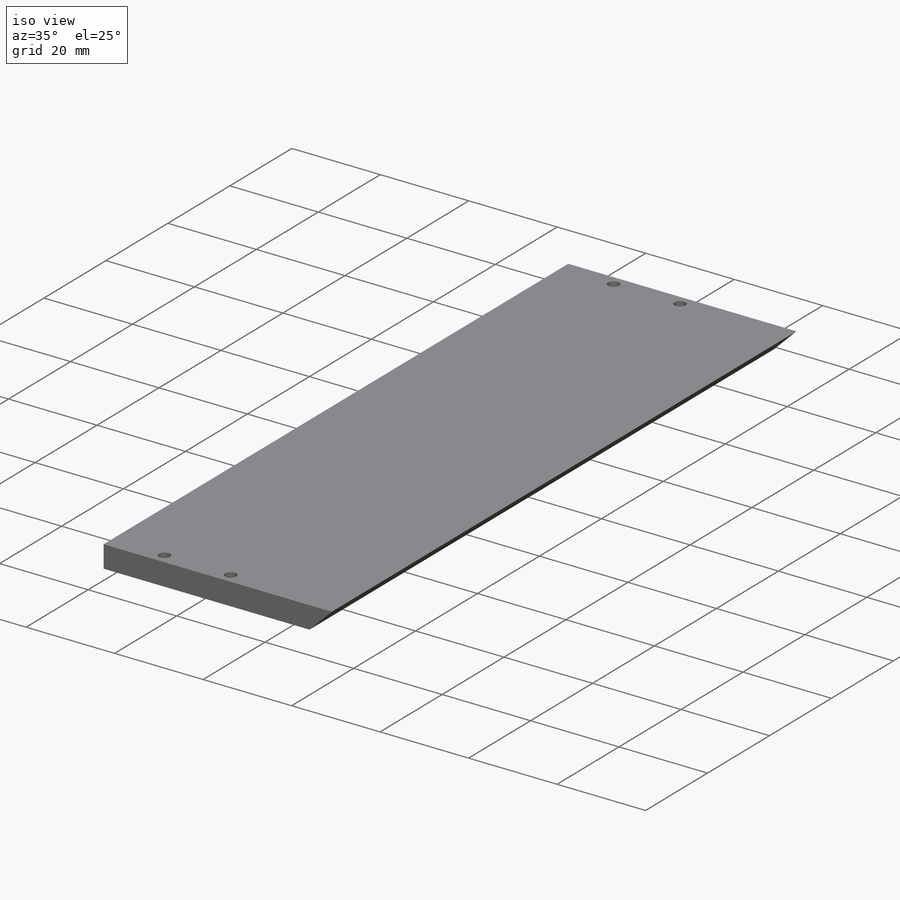
[diagram: iso view]
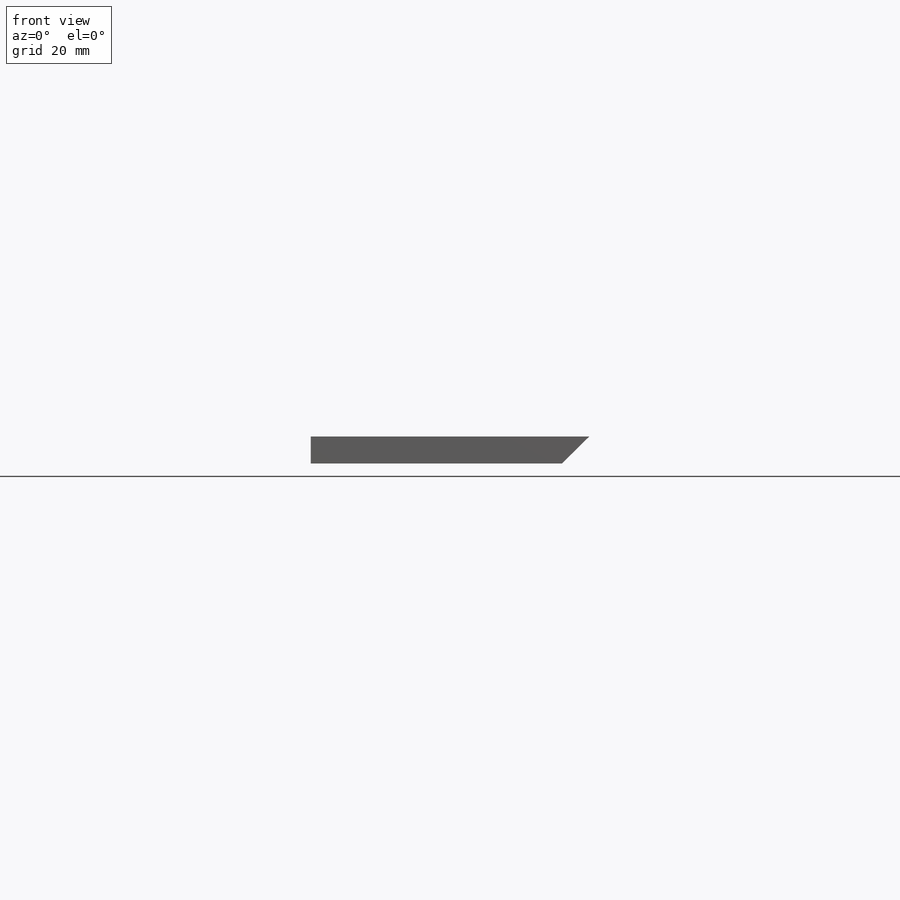
[diagram: front view]
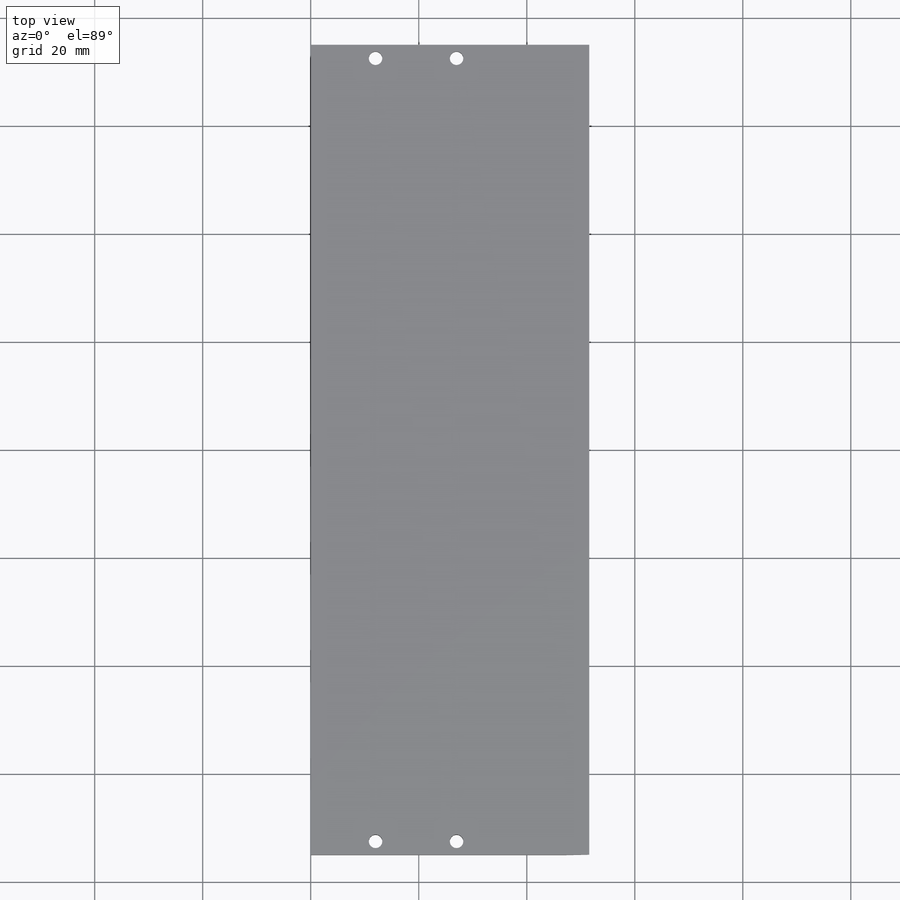
[diagram: top view]
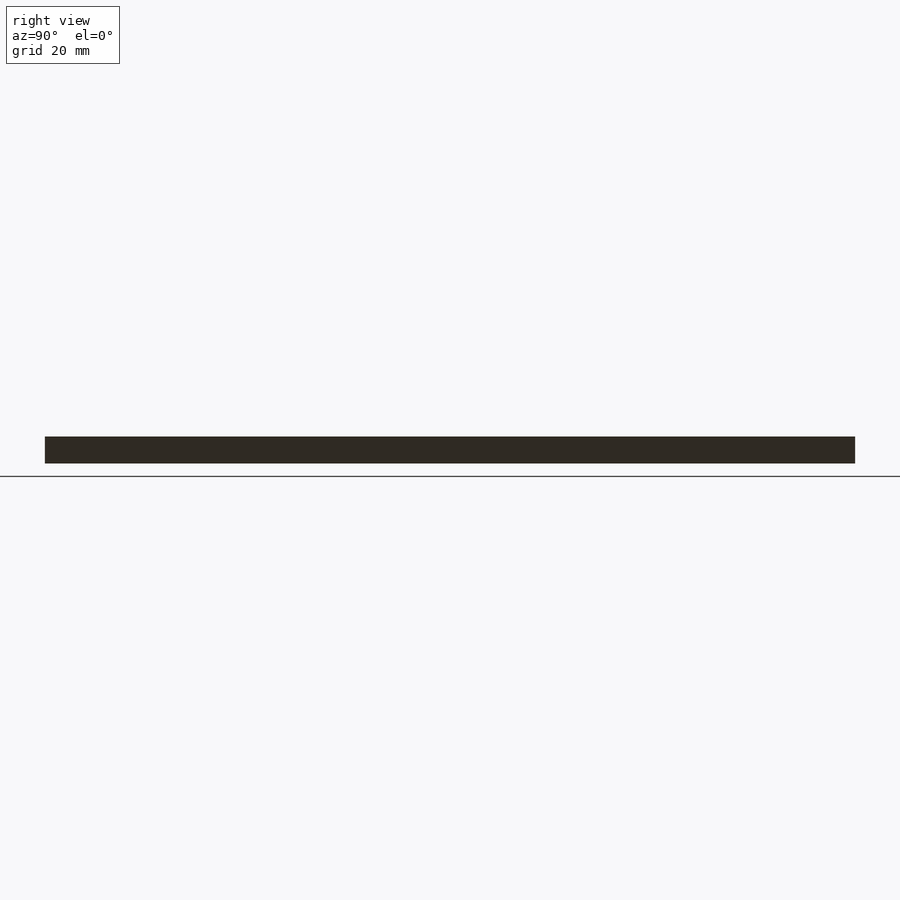
[diagram: right view]
SOLIDWORKS PART (.sldprt)
format: sldprt  version: not decoded by parser v0  size: 168,960 bytes
history: native  units: mm
features: sketch x4, thread x2, material x1, extrude x1, hole x1, mirror x1 (+12 scaffold rows collapsed)
feature tree (22):
  scaffold x12  (default folders/planes/origin — collapsed)
  material  "A286 Iron Base Superalloy"
  sketch  "Sketch1"  dims[D1=5.0mm D2=46.53mm D3=51.57mm]
  extrude  "Boss-Extrude1"  Depth=150mm
  sketch  "Sketch2"  dims[D1=3.0mm D2=3.0mm D3=15.0mm D4=2.5mm D5=2.5mm D6=12.0mm]
  hole  "M3x0.5 Tapped Hole1"  Diameter=2.5mm Depth=5mm
  sketch  "Sketch4"
  sketch  "Sketch3"  dims[hole-wizard template sketch: 61 standard entries collapsed; hole parameters above]
  thread  "Hole Thread1"  Diameter=3mm  [1 undecoded]
  thread  "Hole Thread2"  Diameter=3mm  [1 undecoded]
  mirror  "Mirror1"
decode coverage: 7 of 9 modeling features carry decoded parameters
note: ~ marks probable driven/reference dimensions
note: 2 parameter values undecoded
note: suppression state not decoded; provenance and decode notes live in map.json
